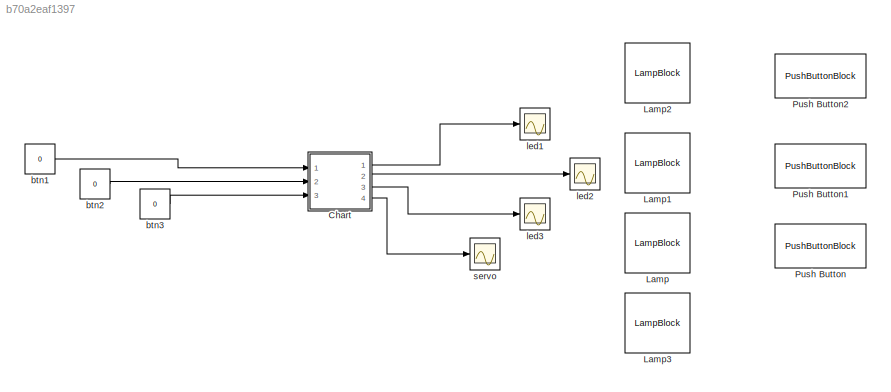
MODEL slx_b70a2eaf1397
KIND model
CONFIG AbsTol = auto
CONFIG EnableMultiTasking = on
CONFIG FixedStep = auto
CONFIG MaxStep = auto
CONFIG MinStep = auto
CONFIG RelTol = 1e-3
CONFIG SampleTimeConstraint = Unconstrained
CONFIG Solver = FixedStepAuto
CONFIG SolverName = FixedStepAuto
CONFIG StartTime = 0.0
CONFIG StopTime = inf
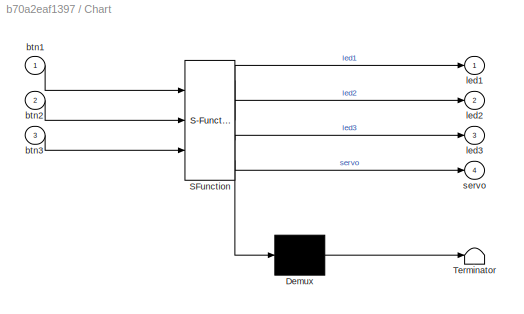
BLOCK [SubSystem] Chart
  BlockKeywords = __PRM__SERIALIZED__DATA__:Stateflow Chart,Stateflow Diagram
  ErrorFcn = Stateflow.Translate.translate
  PermitHierarchicalResolution = ExplicitOnly
  Ports = [3, 4]
  RequestExecContextInheritance = off
  SFBlockType = Chart
  TreatAsAtomicUnit = on
BLOCK [Demux] Chart/ Demux 
  Outputs = 1
  Ports = [1, 1]
BLOCK [S-Function] Chart/ SFunction 
  EnableBusSupport = on
  FunctionName = sf_sfun
  PortCounts = [3 5]
  Ports = [3, 5]
  SFcnIsStateOwnerBlock = off
  SFunctionDeploymentMode = off
  Tag = Stateflow S-Function 3
BLOCK [Terminator] Chart/ Terminator 
BLOCK [Inport] Chart/btn1
  IconDisplay = Port number
BLOCK [Inport] Chart/btn2
  IconDisplay = Port number
  Port = 2
BLOCK [Inport] Chart/btn3
  IconDisplay = Port number
  Port = 3
BLOCK [Outport] Chart/led1
  IconDisplay = Port number
BLOCK [Outport] Chart/led2
  IconDisplay = Port number
  Port = 2
BLOCK [Outport] Chart/led3
  IconDisplay = Port number
  Port = 3
BLOCK [Outport] Chart/servo
  IconDisplay = Port number
  Port = 4
BLOCK [LampBlock] Lamp
BLOCK [LampBlock] Lamp1
BLOCK [LampBlock] Lamp2
BLOCK [LampBlock] Lamp3
BLOCK [PushButtonBlock] Push Button
BLOCK [PushButtonBlock] Push Button1
BLOCK [PushButtonBlock] Push Button2
BLOCK [Constant] btn1
  Value = 0
BLOCK [Constant] btn2
  Value = 0
BLOCK [Constant] btn3
  Value = 0
BLOCK [Scope] led1
  Floating = off
  NumInputPorts = 1
  Ports = [1]
  ScopeSpecificationString = Simulink.scopes.TimeScopeBlockCfg('CurrentConfiguration', extmgr.ConfigurationSet(extmgr.Configuration('Core','General UI',true),extmgr.Configuration('Core','Source UI',true),extmgr.Configuration('Sources','WiredSimulink',true),extmgr.Configuration('Visuals','Time Domain',true,'SerializedDisplays',{struct('MinYLimReal','0.9','MaxYLimReal','1.1','YLabelReal','','MinYLimMag','0.9','MaxYLimMag','1.1'...<+1296ch>
BLOCK [Scope] led2
  Floating = off
  NumInputPorts = 1
  Ports = [1]
  ScopeSpecificationString = Simulink.scopes.TimeScopeBlockCfg('CurrentConfiguration', extmgr.ConfigurationSet(extmgr.Configuration('Core','General UI',true),extmgr.Configuration('Core','Source UI',true),extmgr.Configuration('Sources','WiredSimulink',true,'DataLoggingVariableName','ScopeData1'),extmgr.Configuration('Visuals','Time Domain',true,'SerializedDisplays',{struct('MinYLimReal','-1.00000','MaxYLimReal','1.00000','YLab...<+1369ch>
BLOCK [Scope] led3
  Floating = off
  NumInputPorts = 1
  Ports = [1]
  ScopeSpecificationString = Simulink.scopes.TimeScopeBlockCfg('CurrentConfiguration', extmgr.ConfigurationSet(extmgr.Configuration('Core','General UI',true),extmgr.Configuration('Core','Source UI',true),extmgr.Configuration('Sources','WiredSimulink',true,'DataLoggingVariableName','ScopeData2'),extmgr.Configuration('Visuals','Time Domain',true),extmgr.Configuration('Tools','Plot Navigation',true),extmgr.Configuration('Tools',...<+40ch>
BLOCK [Scope] servo
  Floating = off
  NumInputPorts = 1
  Ports = [1]
  ScopeSpecificationString = Simulink.scopes.TimeScopeBlockCfg('CurrentConfiguration', extmgr.ConfigurationSet(extmgr.Configuration('Core','General UI',true),extmgr.Configuration('Core','Source UI',true),extmgr.Configuration('Sources','WiredSimulink',true,'DataLoggingVariableName','ScopeData3'),extmgr.Configuration('Visuals','Time Domain',true),extmgr.Configuration('Tools','Plot Navigation',true),extmgr.Configuration('Tools',...<+40ch>
LINE Chart:1 -> led1:1
LINE Chart:2 -> led2:1
LINE Chart:3 -> led3:1
LINE Chart:4 -> servo:1
LINE btn1:1 -> Chart:1
LINE btn2:1 -> Chart:2
LINE btn3:1 -> Chart:3
CHART Chart states=11 transitions=20
  STATE_LABEL 'Start\nled1=1;\nprevFloor=1;'
  STATE_LABEL 'state6b'
  STATE_LABEL 'state6a'
  STATE_LABEL 'Moving\nled1=0;\nled2=0;\nled3=0;'
  STATE_LABEL 'Arrive\nservo=1;\nms=0;\nprevFloor=floor;'
  STATE_LABEL 'Idle\n'
  STATE_LABEL 'state2'
  STATE_LABEL 'state3'
  STATE_LABEL 'state8'
  STATE_LABEL 'state6'
  STATE_LABEL 'state7'
